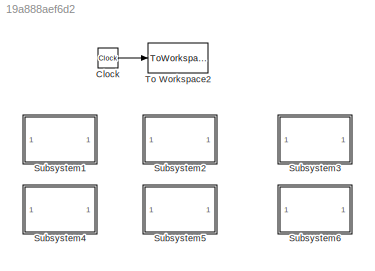
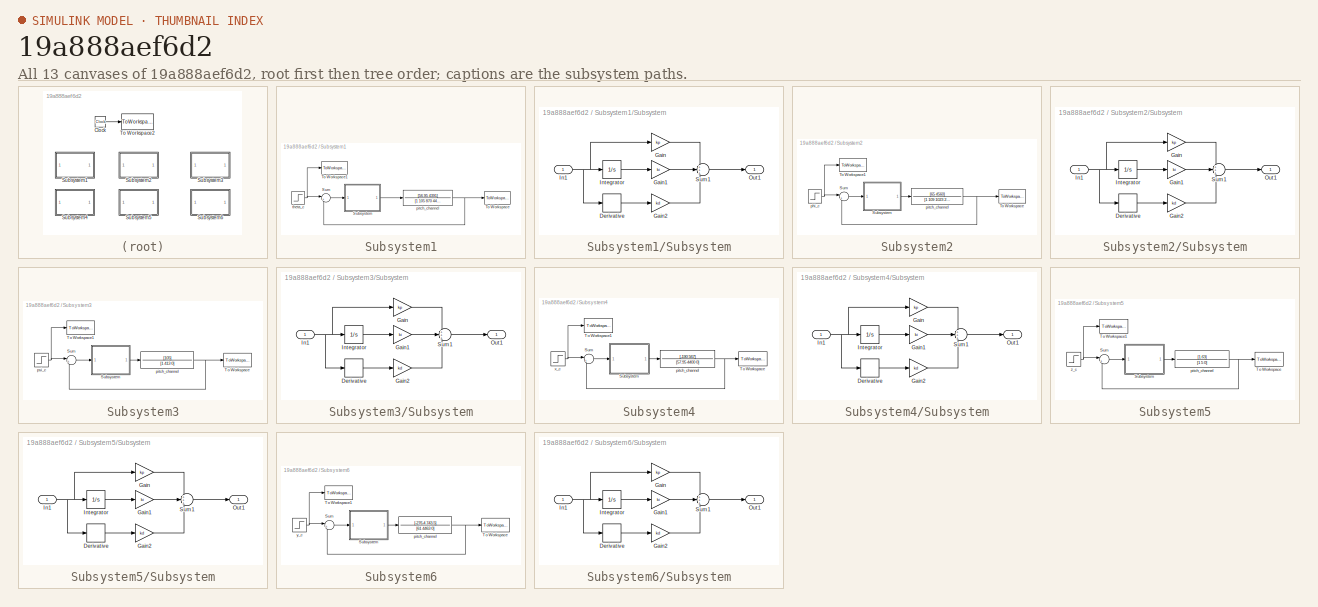
[diagram: thumbnail index - all 13 canvases of the model, root first then tree order]
MODEL slx_19a888aef6d2
KIND model
CONFIG AbsTol = auto
CONFIG FixedStep = auto
CONFIG MaxStep = auto
CONFIG MinStep = auto
CONFIG RelTol = 1e-3
CONFIG SampleTimeConstraint = Unconstrained
CONFIG Solver = VariableStepAuto
CONFIG SolverMode = Auto
CONFIG SolverName = VariableStepAuto
CONFIG StartTime = 0.0
CONFIG StopTime = 20
BLOCK [Clock] Clock
BLOCK [SubSystem] Subsystem1
  Ports = []
  RequestExecContextInheritance = off
  Variant = off
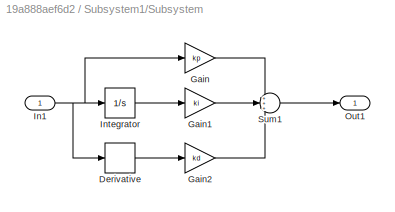
BLOCK [SubSystem] Subsystem1/Subsystem
  Ports = [1, 1]
  RequestExecContextInheritance = off
  Variant = off
BLOCK [Derivative] Subsystem1/Subsystem/Derivative
BLOCK [Gain] Subsystem1/Subsystem/Gain
  Gain = kp
  OutDataTypeStr = Inherit: Inherit via internal rule
  ParamDataTypeStr = Inherit: Inherit via internal rule
  SaturateOnIntegerOverflow = off
BLOCK [Gain] Subsystem1/Subsystem/Gain1
  Gain = ki
  OutDataTypeStr = Inherit: Inherit via internal rule
  ParamDataTypeStr = Inherit: Inherit via internal rule
  SaturateOnIntegerOverflow = off
BLOCK [Gain] Subsystem1/Subsystem/Gain2
  Gain = kd
  OutDataTypeStr = Inherit: Inherit via internal rule
  ParamDataTypeStr = Inherit: Inherit via internal rule
  SaturateOnIntegerOverflow = off
BLOCK [Inport] Subsystem1/Subsystem/In1
  IconDisplay = Port number
BLOCK [Integrator] Subsystem1/Subsystem/Integrator
  Ports = [1, 1]
BLOCK [Outport] Subsystem1/Subsystem/Out1
  IconDisplay = Port number
BLOCK [Sum] Subsystem1/Subsystem/Sum1
  IconShape = round
  InputSameDT = off
  Inputs = +++
  OutDataTypeStr = Inherit: Inherit via internal rule
  Ports = [3, 1]
  SaturateOnIntegerOverflow = off
BLOCK [Sum] Subsystem1/Sum
  IconShape = round
  InputSameDT = off
  Inputs = |+-
  OutDataTypeStr = Inherit: Inherit via internal rule
  Ports = [2, 1]
  SaturateOnIntegerOverflow = off
BLOCK [ToWorkspace] Subsystem1/To Workspace
  FixptAsFi = on
  MaxDataPoints = inf
  Ports = [1]
  SampleTime = -1
  Save2DSignal = 3-D array (concatenate along third dimension)
  VariableName = theta
BLOCK [ToWorkspace] Subsystem1/To Workspace1
  FixptAsFi = on
  MaxDataPoints = inf
  Ports = [1]
  SampleTime = -1
  Save2DSignal = 3-D array (concatenate along third dimension)
  VariableName = theta_c
BLOCK [TransferFcn] Subsystem1/pitch_channel
  Denominator = [1 105 870 4430]
  Numerator = [56.95 4391]
BLOCK [Step] Subsystem1/theta_c
  SampleTime = 0
  Time = 0
BLOCK [SubSystem] Subsystem2
  Ports = []
  RequestExecContextInheritance = off
  Variant = off
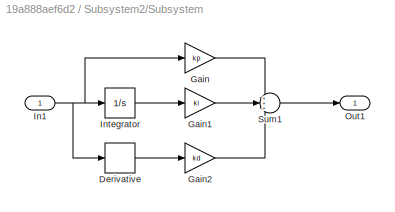
BLOCK [SubSystem] Subsystem2/Subsystem
  Ports = [1, 1]
  RequestExecContextInheritance = off
  Variant = off
BLOCK [Derivative] Subsystem2/Subsystem/Derivative
BLOCK [Gain] Subsystem2/Subsystem/Gain
  Gain = kp
  OutDataTypeStr = Inherit: Inherit via internal rule
  ParamDataTypeStr = Inherit: Inherit via internal rule
  SaturateOnIntegerOverflow = off
BLOCK [Gain] Subsystem2/Subsystem/Gain1
  Gain = ki
  OutDataTypeStr = Inherit: Inherit via internal rule
  ParamDataTypeStr = Inherit: Inherit via internal rule
  SaturateOnIntegerOverflow = off
BLOCK [Gain] Subsystem2/Subsystem/Gain2
  Gain = kd
  OutDataTypeStr = Inherit: Inherit via internal rule
  ParamDataTypeStr = Inherit: Inherit via internal rule
  SaturateOnIntegerOverflow = off
BLOCK [Inport] Subsystem2/Subsystem/In1
  IconDisplay = Port number
BLOCK [Integrator] Subsystem2/Subsystem/Integrator
  Ports = [1, 1]
BLOCK [Outport] Subsystem2/Subsystem/Out1
  IconDisplay = Port number
BLOCK [Sum] Subsystem2/Subsystem/Sum1
  IconShape = round
  InputSameDT = off
  Inputs = +++
  OutDataTypeStr = Inherit: Inherit via internal rule
  Ports = [3, 1]
  SaturateOnIntegerOverflow = off
BLOCK [Sum] Subsystem2/Sum
  IconShape = round
  InputSameDT = off
  Inputs = |+-
  OutDataTypeStr = Inherit: Inherit via internal rule
  Ports = [2, 1]
  SaturateOnIntegerOverflow = off
BLOCK [ToWorkspace] Subsystem2/To Workspace
  FixptAsFi = on
  MaxDataPoints = inf
  Ports = [1]
  SampleTime = -1
  Save2DSignal = 3-D array (concatenate along third dimension)
  VariableName = phi
BLOCK [ToWorkspace] Subsystem2/To Workspace1
  FixptAsFi = on
  MaxDataPoints = inf
  Ports = [1]
  SampleTime = -1
  Save2DSignal = 3-D array (concatenate along third dimension)
  VariableName = phi_c
BLOCK [Step] Subsystem2/phi_c
  SampleTime = 0
  Time = 0
BLOCK [TransferFcn] Subsystem2/pitch_channel
  Denominator = [1 109 1023 2935]
  Numerator = [65 4560]
BLOCK [SubSystem] Subsystem3
  Ports = []
  RequestExecContextInheritance = off
  Variant = off
BLOCK [SubSystem] Subsystem3/Subsystem
  Ports = [1, 1]
  RequestExecContextInheritance = off
  Variant = off
BLOCK [Derivative] Subsystem3/Subsystem/Derivative
BLOCK [Gain] Subsystem3/Subsystem/Gain
  Gain = kp
  OutDataTypeStr = Inherit: Inherit via internal rule
  ParamDataTypeStr = Inherit: Inherit via internal rule
  SaturateOnIntegerOverflow = off
BLOCK [Gain] Subsystem3/Subsystem/Gain1
  Gain = ki
  OutDataTypeStr = Inherit: Inherit via internal rule
  ParamDataTypeStr = Inherit: Inherit via internal rule
  SaturateOnIntegerOverflow = off
BLOCK [Gain] Subsystem3/Subsystem/Gain2
  Gain = kd
  OutDataTypeStr = Inherit: Inherit via internal rule
  ParamDataTypeStr = Inherit: Inherit via internal rule
  SaturateOnIntegerOverflow = off
BLOCK [Inport] Subsystem3/Subsystem/In1
  IconDisplay = Port number
BLOCK [Integrator] Subsystem3/Subsystem/Integrator
  Ports = [1, 1]
BLOCK [Outport] Subsystem3/Subsystem/Out1
  IconDisplay = Port number
BLOCK [Sum] Subsystem3/Subsystem/Sum1
  IconShape = round
  InputSameDT = off
  Inputs = +++
  OutDataTypeStr = Inherit: Inherit via internal rule
  Ports = [3, 1]
  SaturateOnIntegerOverflow = off
BLOCK [Sum] Subsystem3/Sum
  IconShape = round
  InputSameDT = off
  Inputs = |+-
  OutDataTypeStr = Inherit: Inherit via internal rule
  Ports = [2, 1]
  SaturateOnIntegerOverflow = off
BLOCK [ToWorkspace] Subsystem3/To Workspace
  FixptAsFi = on
  MaxDataPoints = inf
  Ports = [1]
  SampleTime = -1
  Save2DSignal = 3-D array (concatenate along third dimension)
  VariableName = psi
BLOCK [ToWorkspace] Subsystem3/To Workspace1
  FixptAsFi = on
  MaxDataPoints = inf
  Ports = [1]
  SampleTime = -1
  Save2DSignal = 3-D array (concatenate along third dimension)
  VariableName = psi_c
BLOCK [TransferFcn] Subsystem3/pitch_channel
  Denominator = [1 413 0]
  Numerator = [105]
BLOCK [Step] Subsystem3/psi_c
  SampleTime = 0
  Time = 0
BLOCK [SubSystem] Subsystem4
  Ports = []
  RequestExecContextInheritance = off
  Variant = off
BLOCK [SubSystem] Subsystem4/Subsystem
  Ports = [1, 1]
  RequestExecContextInheritance = off
  Variant = off
BLOCK [Derivative] Subsystem4/Subsystem/Derivative
BLOCK [Gain] Subsystem4/Subsystem/Gain
  Gain = kp
  OutDataTypeStr = Inherit: Inherit via internal rule
  ParamDataTypeStr = Inherit: Inherit via internal rule
  SaturateOnIntegerOverflow = off
BLOCK [Gain] Subsystem4/Subsystem/Gain1
  Gain = ki
  OutDataTypeStr = Inherit: Inherit via internal rule
  ParamDataTypeStr = Inherit: Inherit via internal rule
  SaturateOnIntegerOverflow = off
BLOCK [Gain] Subsystem4/Subsystem/Gain2
  Gain = kd
  OutDataTypeStr = Inherit: Inherit via internal rule
  ParamDataTypeStr = Inherit: Inherit via internal rule
  SaturateOnIntegerOverflow = off
BLOCK [Inport] Subsystem4/Subsystem/In1
  IconDisplay = Port number
BLOCK [Integrator] Subsystem4/Subsystem/Integrator
  Ports = [1, 1]
BLOCK [Outport] Subsystem4/Subsystem/Out1
  IconDisplay = Port number
BLOCK [Sum] Subsystem4/Subsystem/Sum1
  IconShape = round
  InputSameDT = off
  Inputs = +++
  OutDataTypeStr = Inherit: Inherit via internal rule
  Ports = [3, 1]
  SaturateOnIntegerOverflow = off
BLOCK [Sum] Subsystem4/Sum
  IconShape = round
  InputSameDT = off
  Inputs = |+-
  OutDataTypeStr = Inherit: Inherit via internal rule
  Ports = [2, 1]
  SaturateOnIntegerOverflow = off
BLOCK [ToWorkspace] Subsystem4/To Workspace
  FixptAsFi = on
  MaxDataPoints = inf
  Ports = [1]
  SampleTime = -1
  Save2DSignal = 3-D array (concatenate along third dimension)
  VariableName = x
BLOCK [ToWorkspace] Subsystem4/To Workspace1
  FixptAsFi = on
  MaxDataPoints = inf
  Ports = [1]
  SampleTime = -1
  Save2DSignal = 3-D array (concatenate along third dimension)
  VariableName = x_c
BLOCK [TransferFcn] Subsystem4/pitch_channel
  Denominator = [57.95 4400 0]
  Numerator = [-190 567]
BLOCK [Step] Subsystem4/x_c
  SampleTime = 0
  Time = 0
BLOCK [SubSystem] Subsystem5
  Ports = []
  RequestExecContextInheritance = off
  Variant = off
BLOCK [SubSystem] Subsystem5/Subsystem
  Ports = [1, 1]
  RequestExecContextInheritance = off
  Variant = off
BLOCK [Derivative] Subsystem5/Subsystem/Derivative
BLOCK [Gain] Subsystem5/Subsystem/Gain
  Gain = kp
  OutDataTypeStr = Inherit: Inherit via internal rule
  ParamDataTypeStr = Inherit: Inherit via internal rule
  SaturateOnIntegerOverflow = off
BLOCK [Gain] Subsystem5/Subsystem/Gain1
  Gain = ki
  OutDataTypeStr = Inherit: Inherit via internal rule
  ParamDataTypeStr = Inherit: Inherit via internal rule
  SaturateOnIntegerOverflow = off
BLOCK [Gain] Subsystem5/Subsystem/Gain2
  Gain = kd
  OutDataTypeStr = Inherit: Inherit via internal rule
  ParamDataTypeStr = Inherit: Inherit via internal rule
  SaturateOnIntegerOverflow = off
BLOCK [Inport] Subsystem5/Subsystem/In1
  IconDisplay = Port number
BLOCK [Integrator] Subsystem5/Subsystem/Integrator
  Ports = [1, 1]
BLOCK [Outport] Subsystem5/Subsystem/Out1
  IconDisplay = Port number
BLOCK [Sum] Subsystem5/Subsystem/Sum1
  IconShape = round
  InputSameDT = off
  Inputs = +++
  OutDataTypeStr = Inherit: Inherit via internal rule
  Ports = [3, 1]
  SaturateOnIntegerOverflow = off
BLOCK [Sum] Subsystem5/Sum
  IconShape = round
  InputSameDT = off
  Inputs = |+-
  OutDataTypeStr = Inherit: Inherit via internal rule
  Ports = [2, 1]
  SaturateOnIntegerOverflow = off
BLOCK [ToWorkspace] Subsystem5/To Workspace
  FixptAsFi = on
  MaxDataPoints = inf
  Ports = [1]
  SampleTime = -1
  Save2DSignal = 3-D array (concatenate along third dimension)
  VariableName = z
BLOCK [ToWorkspace] Subsystem5/To Workspace1
  FixptAsFi = on
  MaxDataPoints = inf
  Ports = [1]
  SampleTime = -1
  Save2DSignal = 3-D array (concatenate along third dimension)
  VariableName = z_c
BLOCK [TransferFcn] Subsystem5/pitch_channel
  Denominator = [1 5 0]
  Numerator = [1.63]
BLOCK [Step] Subsystem5/z_c
  SampleTime = 0
  Time = 0
BLOCK [SubSystem] Subsystem6
  Ports = []
  RequestExecContextInheritance = off
  Variant = off
BLOCK [SubSystem] Subsystem6/Subsystem
  Ports = [1, 1]
  RequestExecContextInheritance = off
  Variant = off
BLOCK [Derivative] Subsystem6/Subsystem/Derivative
BLOCK [Gain] Subsystem6/Subsystem/Gain
  Gain = kp
  OutDataTypeStr = Inherit: Inherit via internal rule
  ParamDataTypeStr = Inherit: Inherit via internal rule
  SaturateOnIntegerOverflow = off
BLOCK [Gain] Subsystem6/Subsystem/Gain1
  Gain = ki
  OutDataTypeStr = Inherit: Inherit via internal rule
  ParamDataTypeStr = Inherit: Inherit via internal rule
  SaturateOnIntegerOverflow = off
BLOCK [Gain] Subsystem6/Subsystem/Gain2
  Gain = kd
  OutDataTypeStr = Inherit: Inherit via internal rule
  ParamDataTypeStr = Inherit: Inherit via internal rule
  SaturateOnIntegerOverflow = off
BLOCK [Inport] Subsystem6/Subsystem/In1
  IconDisplay = Port number
BLOCK [Integrator] Subsystem6/Subsystem/Integrator
  Ports = [1, 1]
BLOCK [Outport] Subsystem6/Subsystem/Out1
  IconDisplay = Port number
BLOCK [Sum] Subsystem6/Subsystem/Sum1
  IconShape = round
  InputSameDT = off
  Inputs = +++
  OutDataTypeStr = Inherit: Inherit via internal rule
  Ports = [3, 1]
  SaturateOnIntegerOverflow = off
BLOCK [Sum] Subsystem6/Sum
  IconShape = round
  InputSameDT = off
  Inputs = |+-
  OutDataTypeStr = Inherit: Inherit via internal rule
  Ports = [2, 1]
  SaturateOnIntegerOverflow = off
BLOCK [ToWorkspace] Subsystem6/To Workspace
  FixptAsFi = on
  MaxDataPoints = inf
  Ports = [1]
  SampleTime = -1
  Save2DSignal = 3-D array (concatenate along third dimension)
  VariableName = y
BLOCK [ToWorkspace] Subsystem6/To Workspace1
  FixptAsFi = on
  MaxDataPoints = inf
  Ports = [1]
  SampleTime = -1
  Save2DSignal = 3-D array (concatenate along third dimension)
  VariableName = y_c
BLOCK [TransferFcn] Subsystem6/pitch_channel
  Denominator = [61 4463 0]
  Numerator = [-276.4 743.5]
BLOCK [Step] Subsystem6/y_c
  SampleTime = 0
  Time = 0
BLOCK [ToWorkspace] To Workspace2
  FixptAsFi = on
  MaxDataPoints = inf
  Ports = [1]
  SampleTime = -1
  Save2DSignal = 3-D array (concatenate along third dimension)
  VariableName = t
LINE Clock:1 -> To Workspace2:1
LINE Subsystem1/Subsystem/Derivative:1 -> Subsystem1/Subsystem/Gain2:1
LINE Subsystem1/Subsystem/Gain1:1 -> Subsystem1/Subsystem/Sum1:2
LINE Subsystem1/Subsystem/Gain2:1 -> Subsystem1/Subsystem/Sum1:3
LINE Subsystem1/Subsystem/Gain:1 -> Subsystem1/Subsystem/Sum1:1
NET Subsystem1/Subsystem/In1:1 -> Subsystem1/Subsystem/Derivative:1, Subsystem1/Subsystem/Gain:1, Subsystem1/Subsystem/Integrator:1
LINE Subsystem1/Subsystem/Integrator:1 -> Subsystem1/Subsystem/Gain1:1
LINE Subsystem1/Subsystem/Sum1:1 -> Subsystem1/Subsystem/Out1:1
LINE Subsystem1/Subsystem:1 -> Subsystem1/pitch_channel:1
LINE Subsystem1/Sum:1 -> Subsystem1/Subsystem:1
NET Subsystem1/pitch_channel:1 -> Subsystem1/Sum:2, Subsystem1/To Workspace:1
NET Subsystem1/theta_c:1 -> Subsystem1/Sum:1, Subsystem1/To Workspace1:1
LINE Subsystem2/Subsystem/Derivative:1 -> Subsystem2/Subsystem/Gain2:1
LINE Subsystem2/Subsystem/Gain1:1 -> Subsystem2/Subsystem/Sum1:2
LINE Subsystem2/Subsystem/Gain2:1 -> Subsystem2/Subsystem/Sum1:3
LINE Subsystem2/Subsystem/Gain:1 -> Subsystem2/Subsystem/Sum1:1
NET Subsystem2/Subsystem/In1:1 -> Subsystem2/Subsystem/Derivative:1, Subsystem2/Subsystem/Gain:1, Subsystem2/Subsystem/Integrator:1
LINE Subsystem2/Subsystem/Integrator:1 -> Subsystem2/Subsystem/Gain1:1
LINE Subsystem2/Subsystem/Sum1:1 -> Subsystem2/Subsystem/Out1:1
LINE Subsystem2/Subsystem:1 -> Subsystem2/pitch_channel:1
LINE Subsystem2/Sum:1 -> Subsystem2/Subsystem:1
NET Subsystem2/phi_c:1 -> Subsystem2/Sum:1, Subsystem2/To Workspace1:1
NET Subsystem2/pitch_channel:1 -> Subsystem2/Sum:2, Subsystem2/To Workspace:1
LINE Subsystem3/Subsystem/Derivative:1 -> Subsystem3/Subsystem/Gain2:1
LINE Subsystem3/Subsystem/Gain1:1 -> Subsystem3/Subsystem/Sum1:2
LINE Subsystem3/Subsystem/Gain2:1 -> Subsystem3/Subsystem/Sum1:3
LINE Subsystem3/Subsystem/Gain:1 -> Subsystem3/Subsystem/Sum1:1
NET Subsystem3/Subsystem/In1:1 -> Subsystem3/Subsystem/Derivative:1, Subsystem3/Subsystem/Gain:1, Subsystem3/Subsystem/Integrator:1
LINE Subsystem3/Subsystem/Integrator:1 -> Subsystem3/Subsystem/Gain1:1
LINE Subsystem3/Subsystem/Sum1:1 -> Subsystem3/Subsystem/Out1:1
LINE Subsystem3/Subsystem:1 -> Subsystem3/pitch_channel:1
LINE Subsystem3/Sum:1 -> Subsystem3/Subsystem:1
NET Subsystem3/pitch_channel:1 -> Subsystem3/Sum:2, Subsystem3/To Workspace:1
NET Subsystem3/psi_c:1 -> Subsystem3/Sum:1, Subsystem3/To Workspace1:1
LINE Subsystem4/Subsystem/Derivative:1 -> Subsystem4/Subsystem/Gain2:1
LINE Subsystem4/Subsystem/Gain1:1 -> Subsystem4/Subsystem/Sum1:2
LINE Subsystem4/Subsystem/Gain2:1 -> Subsystem4/Subsystem/Sum1:3
LINE Subsystem4/Subsystem/Gain:1 -> Subsystem4/Subsystem/Sum1:1
NET Subsystem4/Subsystem/In1:1 -> Subsystem4/Subsystem/Derivative:1, Subsystem4/Subsystem/Gain:1, Subsystem4/Subsystem/Integrator:1
LINE Subsystem4/Subsystem/Integrator:1 -> Subsystem4/Subsystem/Gain1:1
LINE Subsystem4/Subsystem/Sum1:1 -> Subsystem4/Subsystem/Out1:1
LINE Subsystem4/Subsystem:1 -> Subsystem4/pitch_channel:1
LINE Subsystem4/Sum:1 -> Subsystem4/Subsystem:1
NET Subsystem4/pitch_channel:1 -> Subsystem4/Sum:2, Subsystem4/To Workspace:1
NET Subsystem4/x_c:1 -> Subsystem4/Sum:1, Subsystem4/To Workspace1:1
LINE Subsystem5/Subsystem/Derivative:1 -> Subsystem5/Subsystem/Gain2:1
LINE Subsystem5/Subsystem/Gain1:1 -> Subsystem5/Subsystem/Sum1:2
LINE Subsystem5/Subsystem/Gain2:1 -> Subsystem5/Subsystem/Sum1:3
LINE Subsystem5/Subsystem/Gain:1 -> Subsystem5/Subsystem/Sum1:1
NET Subsystem5/Subsystem/In1:1 -> Subsystem5/Subsystem/Derivative:1, Subsystem5/Subsystem/Gain:1, Subsystem5/Subsystem/Integrator:1
LINE Subsystem5/Subsystem/Integrator:1 -> Subsystem5/Subsystem/Gain1:1
LINE Subsystem5/Subsystem/Sum1:1 -> Subsystem5/Subsystem/Out1:1
LINE Subsystem5/Subsystem:1 -> Subsystem5/pitch_channel:1
LINE Subsystem5/Sum:1 -> Subsystem5/Subsystem:1
NET Subsystem5/pitch_channel:1 -> Subsystem5/Sum:2, Subsystem5/To Workspace:1
NET Subsystem5/z_c:1 -> Subsystem5/Sum:1, Subsystem5/To Workspace1:1
LINE Subsystem6/Subsystem/Derivative:1 -> Subsystem6/Subsystem/Gain2:1
LINE Subsystem6/Subsystem/Gain1:1 -> Subsystem6/Subsystem/Sum1:2
LINE Subsystem6/Subsystem/Gain2:1 -> Subsystem6/Subsystem/Sum1:3
LINE Subsystem6/Subsystem/Gain:1 -> Subsystem6/Subsystem/Sum1:1
NET Subsystem6/Subsystem/In1:1 -> Subsystem6/Subsystem/Derivative:1, Subsystem6/Subsystem/Gain:1, Subsystem6/Subsystem/Integrator:1
LINE Subsystem6/Subsystem/Integrator:1 -> Subsystem6/Subsystem/Gain1:1
LINE Subsystem6/Subsystem/Sum1:1 -> Subsystem6/Subsystem/Out1:1
LINE Subsystem6/Subsystem:1 -> Subsystem6/pitch_channel:1
LINE Subsystem6/Sum:1 -> Subsystem6/Subsystem:1
NET Subsystem6/pitch_channel:1 -> Subsystem6/Sum:2, Subsystem6/To Workspace:1
NET Subsystem6/y_c:1 -> Subsystem6/Sum:1, Subsystem6/To Workspace1:1
note: NET lines group one-source signal fan-out (src -> all destinations, sorted); 1:1 wires keep LINE
